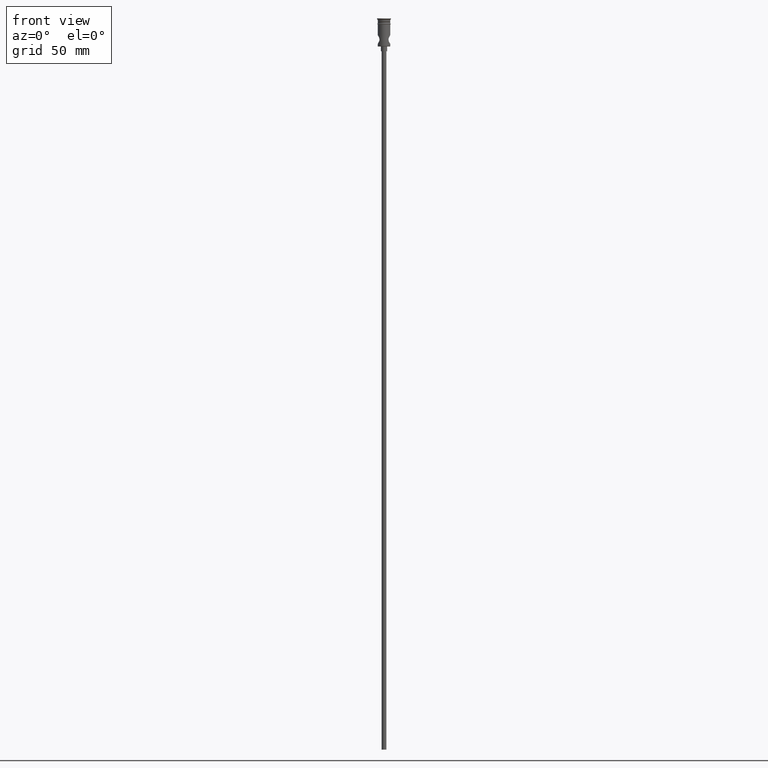
[diagram: clean part render]
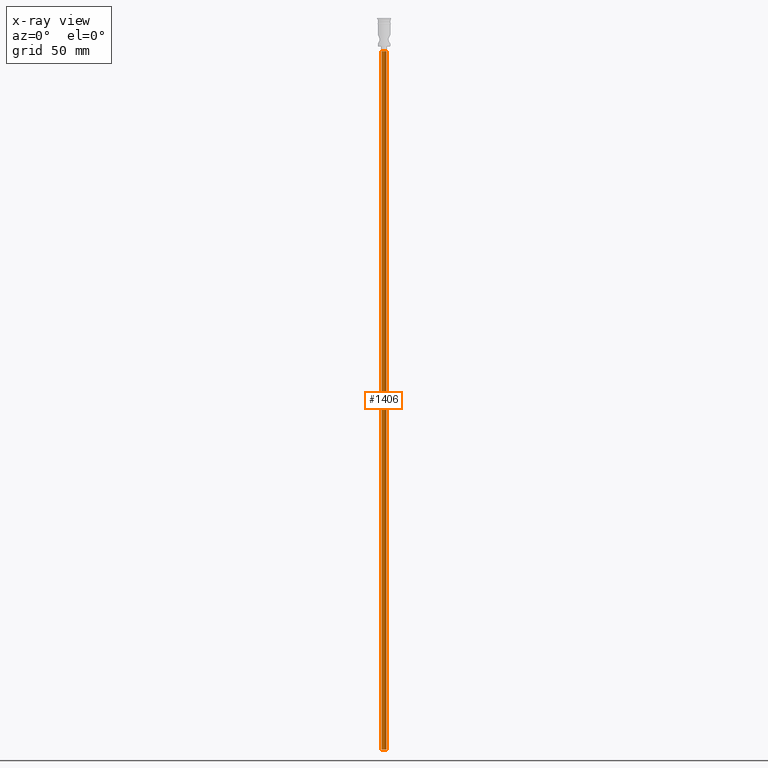
[diagram: x-ray — body ghosted, one internal face saturated and labeled with its STEP entity id]
A machine part, front view, then the same camera in x-ray: the body is ghosted and one INTERNAL B-rep face — a face not visible from any outside direction — is saturated and labeled: STEP entity #1406.
In plain terms, the highlighted cylindrical surface (edge-blend (fillet) strip) has radius 1.5 mm, axis along (-0, -0, 1).
Its self-contained STEP definition (entity closure, byte-faithful):
#115 = CARTESIAN_POINT ( 'NONE',  ( 1.500000000000000222, 0.000000000000000000, -20.99999999999999645 ) ) ;
#148 = LINE ( 'NONE', #484, #537 ) ;
#170 = CARTESIAN_POINT ( 'NONE',  ( -1.500000000000000222, 1.836970198721030181E-16, -468.0000000000000000 ) ) ;
#220 = VERTEX_POINT ( 'NONE', #746 ) ;
#289 = FACE_OUTER_BOUND ( 'NONE', #336, .T. ) ;
#296 = AXIS2_PLACEMENT_3D ( 'NONE', #1176, #431, #402 ) ;
#305 = AXIS2_PLACEMENT_3D ( 'NONE', #1417, #1298, #738 ) ;
#336 = EDGE_LOOP ( 'NONE', ( #1128, #1351, #338, #1412 ) ) ;
#338 = ORIENTED_EDGE ( 'NONE', *, *, #647, .T. ) ;
#349 = DIRECTION ( 'NONE',  ( -0.000000000000000000, -0.000000000000000000, 1.000000000000000000 ) ) ;
#378 = VERTEX_POINT ( 'NONE', #115 ) ;
#402 = DIRECTION ( 'NONE',  ( 1.000000000000000000, 0.000000000000000000, 0.000000000000000000 ) ) ;
#405 = LINE ( 'NONE', #170, #932 ) ;
#431 = DIRECTION ( 'NONE',  ( -0.000000000000000000, -0.000000000000000000, 1.000000000000000000 ) ) ;
#484 = CARTESIAN_POINT ( 'NONE',  ( 1.500000000000000222, 0.000000000000000000, -468.0000000000000000 ) ) ;
#537 = VECTOR ( 'NONE', #349, 1000.000000000000000 ) ;
#621 = EDGE_CURVE ( 'NONE', #220, #1405, #405, .T. ) ;
#630 = CARTESIAN_POINT ( 'NONE',  ( 0.000000000000000000, 0.000000000000000000, -468.0000000000000000 ) ) ;
#647 = EDGE_CURVE ( 'NONE', #1405, #378, #1305, .T. ) ;
#663 = EDGE_CURVE ( 'NONE', #220, #970, #1347, .T. ) ;
#717 = DIRECTION ( 'NONE',  ( 0.000000000000000000, 0.000000000000000000, -1.000000000000000000 ) ) ;
#738 = DIRECTION ( 'NONE',  ( -1.000000000000000000, 0.000000000000000000, 0.000000000000000000 ) ) ;
#746 = CARTESIAN_POINT ( 'NONE',  ( -1.500000000000000222, 1.836970198721030181E-16, -468.0000000000000000 ) ) ;
#910 = EDGE_CURVE ( 'NONE', #970, #378, #148, .T. ) ;
#932 = VECTOR ( 'NONE', #978, 1000.000000000000000 ) ;
#970 = VERTEX_POINT ( 'NONE', #1077 ) ;
#978 = DIRECTION ( 'NONE',  ( -0.000000000000000000, -0.000000000000000000, 1.000000000000000000 ) ) ;
#1077 = CARTESIAN_POINT ( 'NONE',  ( 1.500000000000000222, 0.000000000000000000, -468.0000000000000000 ) ) ;
#1079 = DIRECTION ( 'NONE',  ( -1.000000000000000000, 0.000000000000000000, 0.000000000000000000 ) ) ;
#1103 = CYLINDRICAL_SURFACE ( 'NONE', #296, 1.500000000000000222 ) ;
#1128 = ORIENTED_EDGE ( 'NONE', *, *, #663, .F. ) ;
#1176 = CARTESIAN_POINT ( 'NONE',  ( 0.000000000000000000, 0.000000000000000000, -468.0000000000000000 ) ) ;
#1234 = AXIS2_PLACEMENT_3D ( 'NONE', #630, #717, #1079 ) ;
#1287 = CARTESIAN_POINT ( 'NONE',  ( -1.500000000000000222, 1.836970198721030181E-16, -20.99999999999999645 ) ) ;
#1298 = DIRECTION ( 'NONE',  ( 0.000000000000000000, 0.000000000000000000, -1.000000000000000000 ) ) ;
#1305 = CIRCLE ( 'NONE', #305, 1.500000000000000222 ) ;
#1347 = CIRCLE ( 'NONE', #1234, 1.500000000000000222 ) ;
#1351 = ORIENTED_EDGE ( 'NONE', *, *, #621, .T. ) ;
#1405 = VERTEX_POINT ( 'NONE', #1287 ) ;
#1406 = ADVANCED_FACE ( 'NONE', ( #289 ), #1103, .T. ) ;
#1412 = ORIENTED_EDGE ( 'NONE', *, *, #910, .F. ) ;
#1417 = CARTESIAN_POINT ( 'NONE',  ( 0.000000000000000000, 0.000000000000000000, -20.99999999999999645 ) ) ;